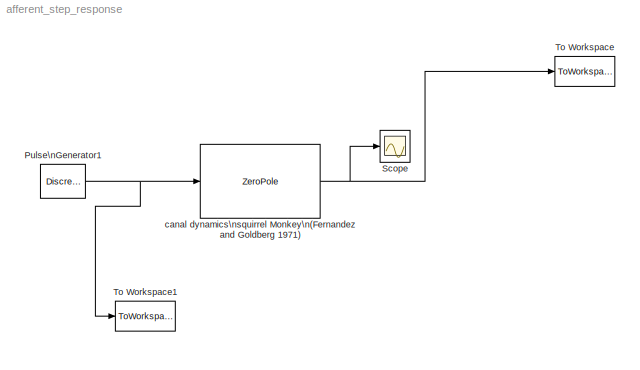
MODEL afferent_step_response
KIND model
BLOCK [DiscretePulseGenerator] Pulse\nGenerator1
  Period = 100
  PhaseDelay = 10
  Ports = [0, 1]
  PulseType = Time based
  PulseWidth = 50
BLOCK [Scope] Scope
  DataFormat = StructureWithTime
  Floating = off
  NumInputPorts = 1
  Ports = [1]
  SampleTime = 0
BLOCK [ToWorkspace] To Workspace
  MaxDataPoints = inf
  SampleTime = Ts
  SaveFormat = Array
  VariableName = simout
BLOCK [ToWorkspace] To Workspace1
  MaxDataPoints = inf
  SampleTime = Ts
  SaveFormat = Array
  VariableName = input
BLOCK [ZeroPole] canal dynamics\nsquirrel Monkey\n(Fernandez and Goldberg 1971)
  Gain = [T/(T1*T2)]
  Poles = [-1/T1 -1/T2]
  Zeros = [0 -1/T]
NET Pulse\nGenerator1:1 -> To Workspace1:1, canal dynamics\nsquirrel Monkey\n(Fernandez and Goldberg 1971):1
NET canal dynamics\nsquirrel Monkey\n(Fernandez and Goldberg 1971):1 -> Scope:1, To Workspace:1
note: NET lines group one-source signal fan-out (src -> all destinations, sorted); 1:1 wires keep LINE
